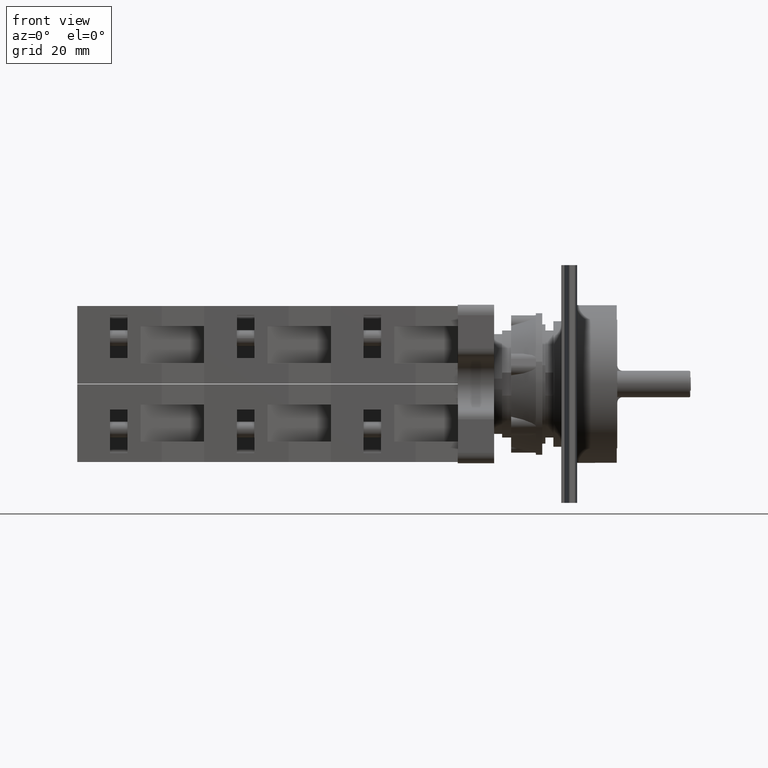
[diagram: clean part render]
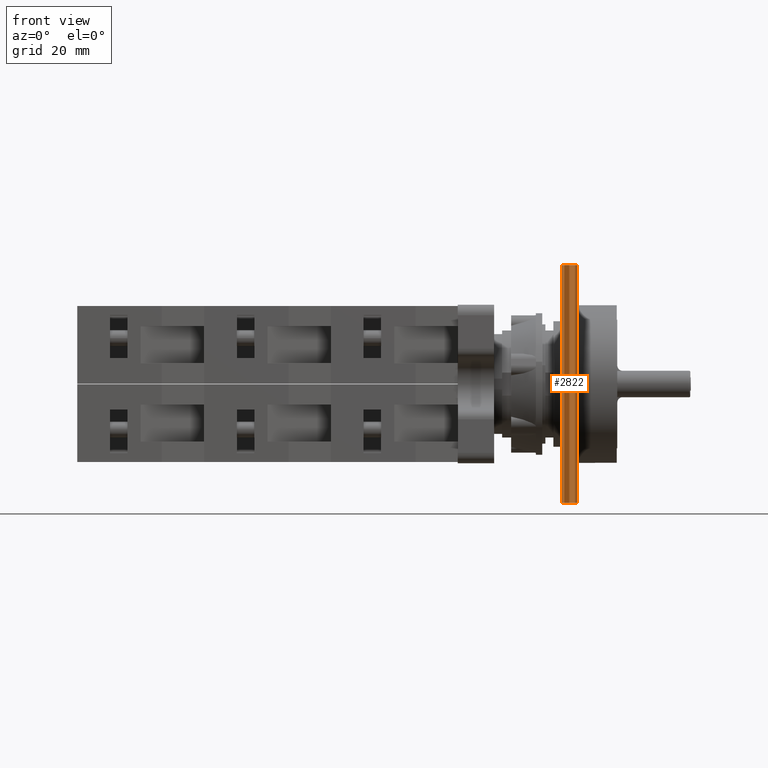
[diagram: same view with one face highlighted and labeled with its STEP entity id]
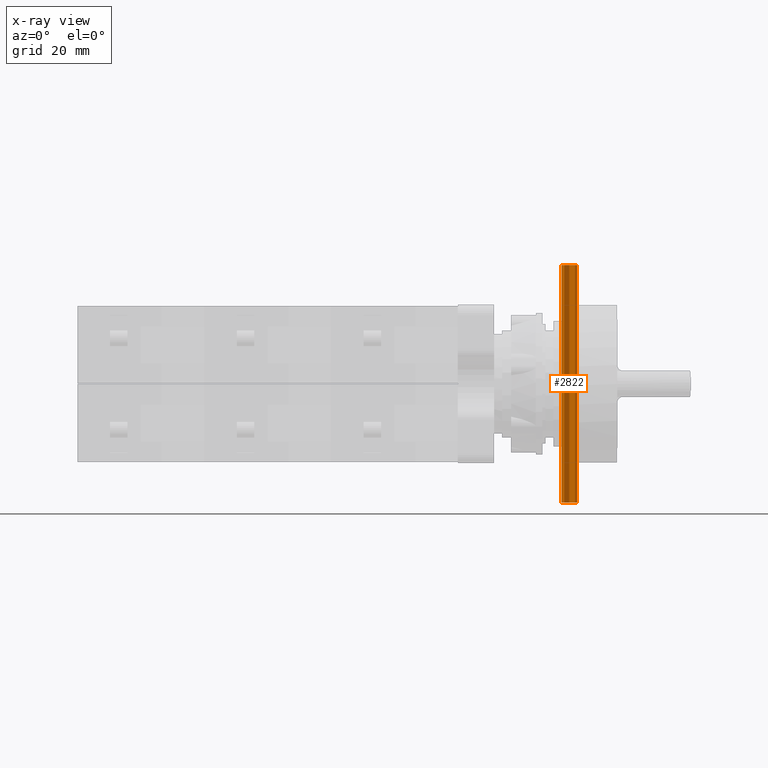
[diagram: x-ray of the same camera — body ghosted, the highlighted face saturated]
A machine part, front view. The second image highlights one B-rep face of the part: STEP entity #2822.
The next image is the same camera in x-ray: the body ghosted, the highlighted face saturated — about 0% of this face is hidden behind the body in this view.
In plain terms, the highlighted face is a freeform B-spline surface patch.
Its self-contained STEP definition (entity closure, byte-faithful):
#2773=CARTESIAN_POINT('',(-12.704183619849175,-2.725398273954286,0.0));
#2774=CARTESIAN_POINT('',(-13.683988853155304,-7.243589001706696,0.0));
#2775=CARTESIAN_POINT('',(-13.964099132856656,2.032835085571791,0.0));
#2776=CARTESIAN_POINT('',(-14.667084388146536,-4.961008747338168,0.0));
#2777=CARTESIAN_POINT('',(-15.704183619849177,-2.725398273954286,0.0));
#2778=CARTESIAN_POINT('',(-12.704183619849175,-2.725398273954286,45.0));
#2779=CARTESIAN_POINT('',(-13.683988853155304,-7.243589001706696,45.0));
#2780=CARTESIAN_POINT('',(-13.964099132856656,2.032835085571791,45.0));
#2781=CARTESIAN_POINT('',(-14.667084388146536,-4.961008747338168,45.0));
#2782=CARTESIAN_POINT('',(-15.704183619849177,-2.725398273954286,45.0));
#2783=B_SPLINE_SURFACE_WITH_KNOTS('',4,1,((#2773,#2778),(#2774,#2779),(#2775,#2780),(#2776,#2781),(#2777,#2782)),.UNSPECIFIED.,.F.,.F.,.U.,(5,5),(2,2),(0.0,1.0),(0.0,4.500000000000000),.UNSPECIFIED.);
#2784=CARTESIAN_POINT('',(-15.704183619849179,-2.725398273954287,45.0));
#2785=VERTEX_POINT('',#2784);
#2786=CARTESIAN_POINT('',(-12.704183619849179,-2.725398273954287,45.0));
#2787=VERTEX_POINT('',#2786);
#2788=CARTESIAN_POINT('',(-15.704183619849177,-2.725398273954286,45.0));
#2789=CARTESIAN_POINT('',(-14.667084388146536,-4.961008747338168,45.0));
#2790=CARTESIAN_POINT('',(-13.964099132856656,2.032835085571791,45.0));
#2791=CARTESIAN_POINT('',(-13.683988853155304,-7.243589001706696,45.0));
#2792=CARTESIAN_POINT('',(-12.704183619849175,-2.725398273954286,45.0));
#2793=QUASI_UNIFORM_CURVE('',4,(#2788,#2789,#2790,#2791,#2792),.UNSPECIFIED.,.F.,.U.);
#2794=EDGE_CURVE('',#2785,#2787,#2793,.T.);
#2795=ORIENTED_EDGE('',*,*,#2794,.T.);
#2796=CARTESIAN_POINT('',(-12.704183619849179,-2.725398273954287,0.0));
#2797=VERTEX_POINT('',#2796);
#2798=CARTESIAN_POINT('',(-12.704183619849179,-2.725398273954287,0.0));
#2799=DIRECTION('',(0.0,0.0,1.0));
#2800=VECTOR('',#2799,45.0);
#2801=LINE('',#2798,#2800);
#2802=EDGE_CURVE('',#2797,#2787,#2801,.T.);
#2803=ORIENTED_EDGE('',*,*,#2802,.F.);
#2804=CARTESIAN_POINT('',(-15.704183619849179,-2.725398273954287,0.0));
#2805=VERTEX_POINT('',#2804);
#2806=CARTESIAN_POINT('',(-12.704183619849175,-2.725398273954286,0.0));
#2807=CARTESIAN_POINT('',(-13.683988853155304,-7.243589001706696,0.0));
#2808=CARTESIAN_POINT('',(-13.964099132856656,2.032835085571791,0.0));
#2809=CARTESIAN_POINT('',(-14.667084388146536,-4.961008747338168,0.0));
#2810=CARTESIAN_POINT('',(-15.704183619849177,-2.725398273954286,0.0));
#2811=QUASI_UNIFORM_CURVE('',4,(#2806,#2807,#2808,#2809,#2810),.UNSPECIFIED.,.F.,.U.);
#2812=EDGE_CURVE('',#2797,#2805,#2811,.T.);
#2813=ORIENTED_EDGE('',*,*,#2812,.T.);
#2814=CARTESIAN_POINT('',(-15.704183619849179,-2.725398273954287,0.0));
#2815=DIRECTION('',(0.0,0.0,1.0));
#2816=VECTOR('',#2815,45.0);
#2817=LINE('',#2814,#2816);
#2818=EDGE_CURVE('',#2805,#2785,#2817,.T.);
#2819=ORIENTED_EDGE('',*,*,#2818,.T.);
#2820=EDGE_LOOP('',(#2795,#2803,#2813,#2819));
#2821=FACE_OUTER_BOUND('',#2820,.T.);
#2822=ADVANCED_FACE('',(#2821),#2783,.T.);